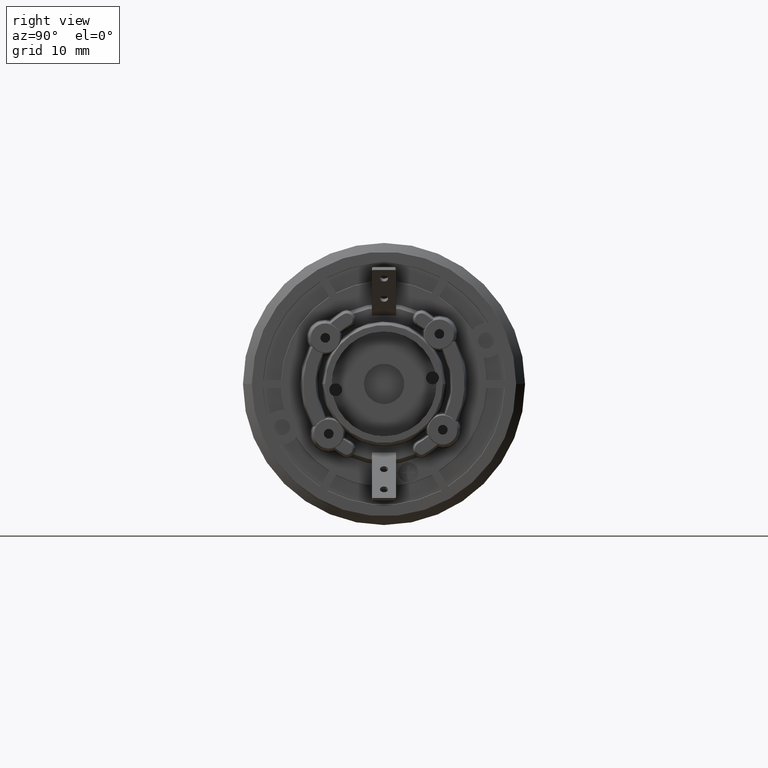
[diagram: clean part render]
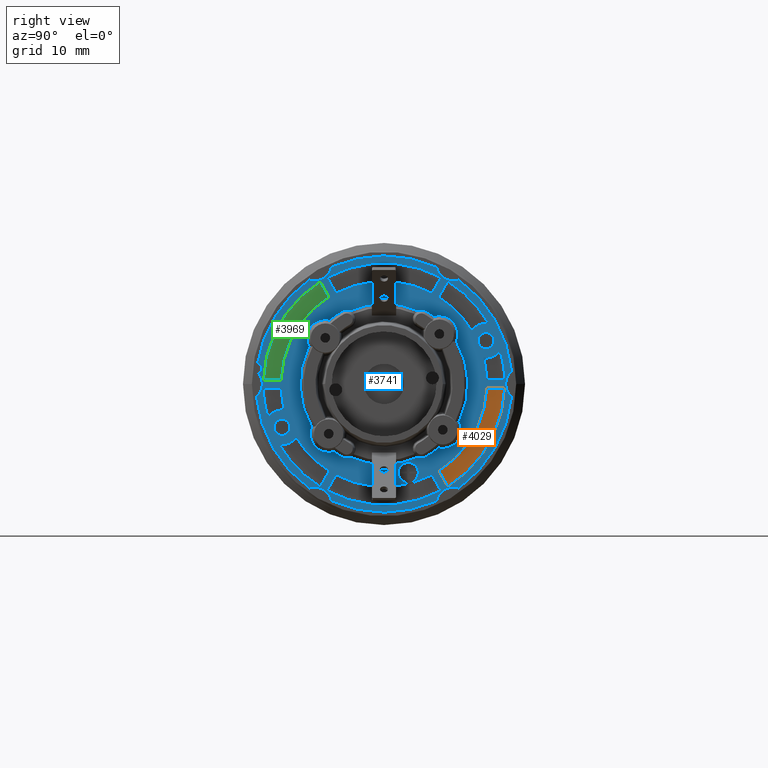
[diagram: same view with three faces highlighted in distinct colors, each labeled with its STEP entity id]
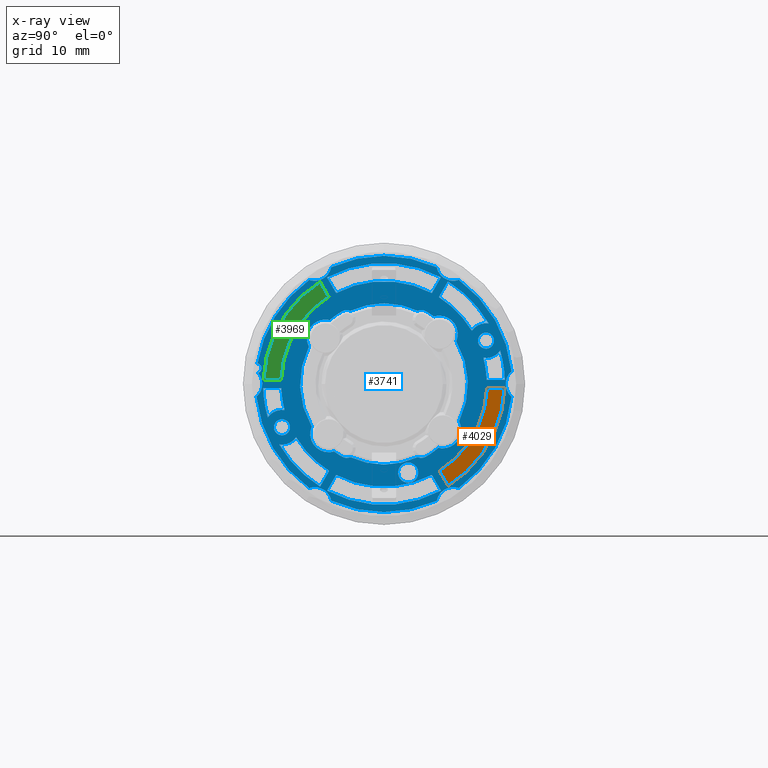
[diagram: x-ray of the same camera — body ghosted, the three highlighted faces saturated]
A machine part, right view with three faces highlighted in distinct colors.
The next image is the same camera in x-ray (body ghosted, the three faces saturated) — at least one of them is partly hidden behind the body in this view.
Their STEP definitions:

[orange] entity #4029 — the highlighted planar face has unit normal (-1, 0, 0).
#209=CARTESIAN_POINT('',(6.74E0,0.E0,0.E0));
#210=DIRECTION('',(-1.E0,0.E0,0.E0));
#211=DIRECTION('',(0.E0,9.992360224352E-1,-3.908160011910E-2));
#212=AXIS2_PLACEMENT_3D('',#209,#210,#211);
#1835=CARTESIAN_POINT('',(6.74E0,0.E0,0.E0));
#1836=DIRECTION('',(-1.E0,0.E0,0.E0));
#1837=DIRECTION('',(0.E0,9.994410336720E-1,-3.343082727998E-2));
#1838=AXIS2_PLACEMENT_3D('',#1835,#1836,#1837);
#1999=DIRECTION('',(0.E0,1.E0,0.E0));
#2000=VECTOR('',#1999,2.163925426802E0);
#2001=CARTESIAN_POINT('',(6.74E0,1.278397019812E1,-5.E-1));
#2002=LINE('',#2001,#2000);
#2003=DIRECTION('',(0.E0,-5.E-1,8.660254037844E-1));
#2004=VECTOR('',#2003,2.163925426802E0);
#2005=CARTESIAN_POINT('',(6.74E0,7.906960514355E0,-1.269525734430E1));
#2006=LINE('',#2005,#2004);
#3318=CARTESIAN_POINT('',(6.74E0,1.494789562493E1,-5.E-1));
#3319=CARTESIAN_POINT('',(6.74E0,7.906960514355E0,-1.269525734430E1));
#3320=VERTEX_POINT('',#3318);
#3321=VERTEX_POINT('',#3319);
#3350=CARTESIAN_POINT('',(6.74E0,1.278397019812E1,-5.E-1));
#3351=CARTESIAN_POINT('',(6.74E0,6.824997800954E0,-1.082124295280E1));
#3352=VERTEX_POINT('',#3350);
#3353=VERTEX_POINT('',#3351);
#4015=CARTESIAN_POINT('',(6.74E0,0.E0,0.E0));
#4016=DIRECTION('',(-1.E0,0.E0,0.E0));
#4017=DIRECTION('',(0.E0,1.E0,0.E0));
#4018=AXIS2_PLACEMENT_3D('',#4015,#4016,#4017);
#4019=PLANE('',#4018);
#4021=ORIENTED_EDGE('',*,*,#4020,.T.);
#4023=ORIENTED_EDGE('',*,*,#4022,.T.);
#4024=ORIENTED_EDGE('',*,*,#3747,.F.);
#4026=ORIENTED_EDGE('',*,*,#4025,.T.);
#4027=EDGE_LOOP('',(#4021,#4023,#4024,#4026));
#4028=FACE_OUTER_BOUND('',#4027,.F.);
#4029=ADVANCED_FACE('',(#4028),#4019,.F.);
#213=CIRCLE('',#212,1.279374433176E1);
#1839=CIRCLE('',#1838,1.495625566824E1);
#3747=EDGE_CURVE('',#3352,#3353,#213,.T.);
#4020=EDGE_CURVE('',#3320,#3321,#1839,.T.);
#4022=EDGE_CURVE('',#3321,#3353,#2006,.T.);
#4025=EDGE_CURVE('',#3352,#3320,#2002,.T.);

[blue] entity #3741 — the highlighted planar face has unit normal (-1, 0, 0).
#1=DIRECTION('',(0.E0,5.E-1,8.660254037844E-1));
#2=VECTOR('',#1,2.251472044324E0);
#3=CARTESIAN_POINT('',(7.24E0,6.803108855013E0,1.078333018630E1));
#4=LINE('',#3,#2);
#5=DIRECTION('',(0.E0,-5.E-1,-8.660254037844E-1));
#6=VECTOR('',#5,2.251472044324E0);
#7=CARTESIAN_POINT('',(7.24E0,-6.803108855013E0,-1.078333018630E1));
#8=LINE('',#7,#6);
#9=CARTESIAN_POINT('',(7.24E0,-6.87E0,-6.19E0));
#10=DIRECTION('',(-1.E0,0.E0,0.E0));
#11=DIRECTION('',(0.E0,2.981476129001E-1,-9.545197750293E-1));
#12=AXIS2_PLACEMENT_3D('',#9,#10,#11);
#14=CARTESIAN_POINT('',(7.24E0,0.E0,0.E0));
#15=DIRECTION('',(1.E0,0.E0,0.E0));
#16=DIRECTION('',(0.E0,-5.943893332211E-1,-8.041774185794E-1));
#17=AXIS2_PLACEMENT_3D('',#14,#15,#16);
#19=CARTESIAN_POINT('',(7.24E0,-4.625E0,-8.010734985006E0));
#20=DIRECTION('',(1.E0,0.E0,0.E0));
#21=DIRECTION('',(0.E0,-5.E-1,-8.660254037844E-1));
#22=AXIS2_PLACEMENT_3D('',#19,#20,#21);
#24=CARTESIAN_POINT('',(7.24E0,0.E0,0.E0));
#25=DIRECTION('',(-1.E0,0.E0,0.E0));
#26=DIRECTION('',(0.E0,4.181361271310E-1,-9.083843785468E-1));
#27=AXIS2_PLACEMENT_3D('',#24,#25,#26);
#29=CARTESIAN_POINT('',(7.24E0,4.625E0,-8.010734985006E0));
#30=DIRECTION('',(1.E0,0.E0,0.E0));
#31=DIRECTION('',(0.E0,-3.820530333871E-1,-9.241404004153E-1));
#32=AXIS2_PLACEMENT_3D('',#29,#30,#31);
#34=CARTESIAN_POINT('',(7.24E0,0.E0,0.E0));
#35=DIRECTION('',(1.E0,0.E0,0.E0));
#36=DIRECTION('',(0.E0,5.E-1,-8.660254037844E-1));
#37=AXIS2_PLACEMENT_3D('',#34,#35,#36);
#39=CARTESIAN_POINT('',(7.24E0,7.29E0,-5.7E0));
#40=DIRECTION('',(-1.E0,0.E0,0.E0));
#41=DIRECTION('',(0.E0,0.E0,-1.E0));
#42=AXIS2_PLACEMENT_3D('',#39,#40,#41);
#44=CARTESIAN_POINT('',(7.24E0,7.29E0,-5.7E0));
#45=DIRECTION('',(-1.E0,0.E0,0.E0));
#46=DIRECTION('',(0.E0,8.869767942068E-1,4.618139956070E-1));
#47=AXIS2_PLACEMENT_3D('',#44,#45,#46);
#49=CARTESIAN_POINT('',(7.24E0,0.E0,0.E0));
#50=DIRECTION('',(1.E0,0.E0,0.E0));
#51=DIRECTION('',(0.E0,8.949995648895E-1,-4.460670116111E-1));
#52=AXIS2_PLACEMENT_3D('',#49,#50,#51);
#54=CARTESIAN_POINT('',(7.24E0,6.87E0,6.19E0));
#55=DIRECTION('',(-1.E0,0.E0,0.E0));
#56=DIRECTION('',(0.E0,0.E0,1.E0));
#57=AXIS2_PLACEMENT_3D('',#54,#55,#56);
#59=CARTESIAN_POINT('',(7.24E0,6.87E0,6.19E0));
#60=DIRECTION('',(-1.E0,0.E0,0.E0));
#61=DIRECTION('',(0.E0,-2.981476129001E-1,9.545197750293E-1));
#62=AXIS2_PLACEMENT_3D('',#59,#60,#61);
#64=CARTESIAN_POINT('',(7.24E0,0.E0,0.E0));
#65=DIRECTION('',(1.E0,0.E0,0.E0));
#66=DIRECTION('',(0.E0,5.943893332211E-1,8.041774185794E-1));
#67=AXIS2_PLACEMENT_3D('',#64,#65,#66);
#69=CARTESIAN_POINT('',(7.24E0,4.625E0,8.010734985006E0));
#70=DIRECTION('',(1.E0,0.E0,0.E0));
#71=DIRECTION('',(0.E0,5.E-1,8.660254037844E-1));
#72=AXIS2_PLACEMENT_3D('',#69,#70,#71);
#74=CARTESIAN_POINT('',(7.24E0,0.E0,0.E0));
#75=DIRECTION('',(1.E0,0.E0,0.E0));
#76=DIRECTION('',(0.E0,4.181361271310E-1,9.083843785468E-1));
#77=AXIS2_PLACEMENT_3D('',#74,#75,#76);
#79=CARTESIAN_POINT('',(7.24E0,-4.625E0,8.010734985006E0));
#80=DIRECTION('',(1.E0,0.E0,0.E0));
#81=DIRECTION('',(0.E0,3.820530333871E-1,9.241404004153E-1));
#82=AXIS2_PLACEMENT_3D('',#79,#80,#81);
#84=CARTESIAN_POINT('',(7.24E0,0.E0,0.E0));
#85=DIRECTION('',(1.E0,0.E0,0.E0));
#86=DIRECTION('',(0.E0,-5.E-1,8.660254037844E-1));
#87=AXIS2_PLACEMENT_3D('',#84,#85,#86);
#89=CARTESIAN_POINT('',(7.24E0,-7.29E0,5.7E0));
#90=DIRECTION('',(-1.E0,0.E0,0.E0));
#91=DIRECTION('',(0.E0,0.E0,1.E0));
#92=AXIS2_PLACEMENT_3D('',#89,#90,#91);
#94=CARTESIAN_POINT('',(7.24E0,-7.29E0,5.7E0));
#95=DIRECTION('',(-1.E0,0.E0,0.E0));
#96=DIRECTION('',(0.E0,-8.869767942069E-1,-4.618139956070E-1));
#97=AXIS2_PLACEMENT_3D('',#94,#95,#96);
#99=CARTESIAN_POINT('',(7.24E0,0.E0,0.E0));
#100=DIRECTION('',(1.E0,0.E0,0.E0));
#101=DIRECTION('',(0.E0,-8.949995648895E-1,4.460670116111E-1));
#102=AXIS2_PLACEMENT_3D('',#99,#100,#101);
#104=CARTESIAN_POINT('',(7.24E0,-6.87E0,-6.19E0));
#105=DIRECTION('',(-1.E0,0.E0,0.E0));
#106=DIRECTION('',(0.E0,0.E0,-1.E0));
#107=AXIS2_PLACEMENT_3D('',#104,#105,#106);
#109=DIRECTION('',(0.E0,-5.E-1,8.660254037844E-1));
#110=VECTOR('',#109,2.251472044324E0);
#111=CARTESIAN_POINT('',(7.24E0,7.928844877175E0,-1.273316217260E1));
#112=LINE('',#111,#110);
#113=DIRECTION('',(0.E0,1.E0,0.E0));
#114=VECTOR('',#113,2.251472044324E0);
#115=CARTESIAN_POINT('',(7.24E0,1.274019230624E1,-5.E-1));
#116=LINE('',#115,#114);
#117=DIRECTION('',(0.E0,5.E-1,8.660254037844E-1));
#118=VECTOR('',#117,2.251472044324E0);
#119=CARTESIAN_POINT('',(7.24E0,-7.062819473390E0,-1.323316217260E1));
#120=LINE('',#119,#118);
#121=DIRECTION('',(0.E0,5.E-1,-8.660254037844E-1));
#122=VECTOR('',#121,2.251472044324E0);
#123=CARTESIAN_POINT('',(7.24E0,5.937083451228E0,-1.128333018630E1));
#124=LINE('',#123,#122);
#125=DIRECTION('',(0.E0,5.E-1,-8.660254037844E-1));
#126=VECTOR('',#125,2.251472044324E0);
#127=CARTESIAN_POINT('',(7.24E0,-7.928844877175E0,1.273316217260E1));
#128=LINE('',#127,#126);
#129=DIRECTION('',(0.E0,-1.E0,0.E0));
#130=VECTOR('',#129,2.251472044324E0);
#131=CARTESIAN_POINT('',(7.24E0,-1.274019230624E1,5.E-1));
#132=LINE('',#131,#130);
#133=DIRECTION('',(0.E0,-5.E-1,-8.660254037844E-1));
#134=VECTOR('',#133,2.251472044324E0);
#135=CARTESIAN_POINT('',(7.24E0,7.062819473390E0,1.323316217260E1));
#136=LINE('',#135,#134);
#137=DIRECTION('',(0.E0,-5.E-1,8.660254037844E-1));
#138=VECTOR('',#137,2.251472044324E0);
#139=CARTESIAN_POINT('',(7.24E0,-5.937083451228E0,1.128333018630E1));
#140=LINE('',#139,#138);
#141=DIRECTION('',(0.E0,1.E0,0.E0));
#142=VECTOR('',#141,2.251472044324E0);
#143=CARTESIAN_POINT('',(7.24E0,-1.499166435056E1,-5.E-1));
#144=LINE('',#143,#142);
#145=DIRECTION('',(0.E0,-1.E0,0.E0));
#146=VECTOR('',#145,2.251472044324E0);
#147=CARTESIAN_POINT('',(7.24E0,1.499166435056E1,5.E-1));
#148=LINE('',#147,#146);
#149=CARTESIAN_POINT('',(7.24E0,-1.265694173497E1,-5.372553016728E0));
#150=DIRECTION('',(1.E0,0.E0,0.E0));
#151=DIRECTION('',(0.E0,0.E0,-1.E0));
#152=AXIS2_PLACEMENT_3D('',#149,#150,#151);
#154=CARTESIAN_POINT('',(7.24E0,-1.265694173497E1,-5.372553016728E0));
#155=DIRECTION('',(1.E0,0.E0,0.E0));
#156=DIRECTION('',(0.E0,0.E0,1.E0));
#157=AXIS2_PLACEMENT_3D('',#154,#155,#156);
#159=CARTESIAN_POINT('',(7.24E0,1.265694173497E1,5.372553016728E0));
#160=DIRECTION('',(1.E0,0.E0,0.E0));
#161=DIRECTION('',(0.E0,0.E0,-1.E0));
#162=AXIS2_PLACEMENT_3D('',#159,#160,#161);
#164=CARTESIAN_POINT('',(7.24E0,1.265694173497E1,5.372553016728E0));
#165=DIRECTION('',(1.E0,0.E0,0.E0));
#166=DIRECTION('',(0.E0,0.E0,1.E0));
#167=AXIS2_PLACEMENT_3D('',#164,#165,#166);
#169=CARTESIAN_POINT('',(7.24E0,8.6E0,1.489563694509E1));
#170=DIRECTION('',(1.E0,0.E0,0.E0));
#171=DIRECTION('',(0.E0,-9.814647443284E-1,-1.916427813417E-1));
#172=AXIS2_PLACEMENT_3D('',#169,#170,#171);
#174=CARTESIAN_POINT('',(7.24E0,1.72E1,0.E0));
#175=DIRECTION('',(1.E0,0.E0,0.E0));
#176=DIRECTION('',(0.E0,-6.566998892580E-1,7.541520108363E-1));
#177=AXIS2_PLACEMENT_3D('',#174,#175,#176);
#179=CARTESIAN_POINT('',(7.24E0,8.6E0,-1.489563694509E1));
#180=DIRECTION('',(1.E0,0.E0,0.E0));
#181=DIRECTION('',(0.E0,3.247648550704E-1,9.457947921780E-1));
#182=AXIS2_PLACEMENT_3D('',#179,#180,#181);
#184=CARTESIAN_POINT('',(7.24E0,-8.6E0,-1.489563694509E1));
#185=DIRECTION('',(1.E0,0.E0,0.E0));
#186=DIRECTION('',(0.E0,9.814647443284E-1,1.916427813417E-1));
#187=AXIS2_PLACEMENT_3D('',#184,#185,#186);
#189=CARTESIAN_POINT('',(7.24E0,-1.72E1,0.E0));
#190=DIRECTION('',(1.E0,0.E0,0.E0));
#191=DIRECTION('',(0.E0,6.566998892580E-1,-7.541520108363E-1));
#192=AXIS2_PLACEMENT_3D('',#189,#190,#191);
#194=CARTESIAN_POINT('',(7.24E0,-8.6E0,1.489563694509E1));
#195=DIRECTION('',(1.E0,0.E0,0.E0));
#196=DIRECTION('',(0.E0,-3.247648550704E-1,-9.457947921780E-1));
#197=AXIS2_PLACEMENT_3D('',#194,#195,#196);
#199=CARTESIAN_POINT('',(7.24E0,3.E0,-1.1E1));
#200=DIRECTION('',(1.E0,0.E0,0.E0));
#201=DIRECTION('',(0.E0,0.E0,1.E0));
#202=AXIS2_PLACEMENT_3D('',#199,#200,#201);
#204=CARTESIAN_POINT('',(7.24E0,3.E0,-1.1E1));
#205=DIRECTION('',(1.E0,0.E0,0.E0));
#206=DIRECTION('',(0.E0,0.E0,-1.E0));
#207=AXIS2_PLACEMENT_3D('',#204,#205,#206);
#220=CARTESIAN_POINT('',(7.24E0,0.E0,0.E0));
#221=DIRECTION('',(1.E0,0.E0,0.E0));
#222=DIRECTION('',(0.E0,5.335771650990E-1,-8.457513871611E-1));
#223=AXIS2_PLACEMENT_3D('',#220,#221,#222);
#242=CARTESIAN_POINT('',(7.24E0,0.E0,0.E0));
#243=DIRECTION('',(1.E0,0.E0,0.E0));
#244=DIRECTION('',(0.E0,-4.656536040179E-1,-8.849670734356E-1));
#245=AXIS2_PLACEMENT_3D('',#242,#243,#244);
#264=CARTESIAN_POINT('',(7.24E0,0.E0,0.E0));
#265=DIRECTION('',(1.E0,0.E0,0.E0));
#266=DIRECTION('',(0.E0,-8.549735760760E-1,-5.186715571649E-1));
#267=AXIS2_PLACEMENT_3D('',#264,#265,#266);
#286=CARTESIAN_POINT('',(7.24E0,0.E0,0.E0));
#287=DIRECTION('',(1.E0,0.E0,0.E0));
#288=DIRECTION('',(0.E0,-9.992307691169E-1,-3.921568627451E-2));
#289=AXIS2_PLACEMENT_3D('',#286,#287,#288);
#302=CARTESIAN_POINT('',(7.24E0,0.E0,0.E0));
#303=DIRECTION('',(1.E0,0.E0,0.E0));
#304=DIRECTION('',(0.E0,-5.335771650990E-1,8.457513871611E-1));
#305=AXIS2_PLACEMENT_3D('',#302,#303,#304);
#324=CARTESIAN_POINT('',(7.24E0,0.E0,0.E0));
#325=DIRECTION('',(1.E0,0.E0,0.E0));
#326=DIRECTION('',(0.E0,4.656536040179E-1,8.849670734356E-1));
#327=AXIS2_PLACEMENT_3D('',#324,#325,#326);
#346=CARTESIAN_POINT('',(7.24E0,0.E0,0.E0));
#347=DIRECTION('',(1.E0,0.E0,0.E0));
#348=DIRECTION('',(0.E0,8.549735760760E-1,5.186715571649E-1));
#349=AXIS2_PLACEMENT_3D('',#346,#347,#348);
#368=CARTESIAN_POINT('',(7.24E0,0.E0,0.E0));
#369=DIRECTION('',(1.E0,0.E0,0.E0));
#370=DIRECTION('',(0.E0,9.992307691169E-1,3.921568627451E-2));
#371=AXIS2_PLACEMENT_3D('',#368,#369,#370);
#1846=CARTESIAN_POINT('',(7.24E0,0.E0,0.E0));
#1847=DIRECTION('',(-1.E0,0.E0,0.E0));
#1848=DIRECTION('',(0.E0,9.994442900377E-1,-3.333333333333E-2));
#1849=AXIS2_PLACEMENT_3D('',#1846,#1847,#1848);
#1868=CARTESIAN_POINT('',(7.24E0,0.E0,0.E0));
#1869=DIRECTION('',(-1.E0,0.E0,0.E0));
#1870=DIRECTION('',(0.E0,4.708546315594E-1,-8.822108115066E-1));
#1871=AXIS2_PLACEMENT_3D('',#1868,#1869,#1870);
#1890=CARTESIAN_POINT('',(7.24E0,0.E0,0.E0));
#1891=DIRECTION('',(-1.E0,0.E0,0.E0));
#1892=DIRECTION('',(0.E0,-5.285896584783E-1,-8.488774781733E-1));
#1893=AXIS2_PLACEMENT_3D('',#1890,#1891,#1892);
#1906=CARTESIAN_POINT('',(7.24E0,0.E0,0.E0));
#1907=DIRECTION('',(-1.E0,0.E0,0.E0));
#1908=DIRECTION('',(0.E0,-9.611808896919E-1,-2.759190049473E-1));
#1909=AXIS2_PLACEMENT_3D('',#1906,#1907,#1908);
#1928=CARTESIAN_POINT('',(7.24E0,0.E0,0.E0));
#1929=DIRECTION('',(-1.E0,0.E0,0.E0));
#1930=DIRECTION('',(0.E0,-9.994442900377E-1,3.333333333333E-2));
#1931=AXIS2_PLACEMENT_3D('',#1928,#1929,#1930);
#1950=CARTESIAN_POINT('',(7.24E0,0.E0,0.E0));
#1951=DIRECTION('',(-1.E0,0.E0,0.E0));
#1952=DIRECTION('',(0.E0,-4.708546315594E-1,8.822108115066E-1));
#1953=AXIS2_PLACEMENT_3D('',#1950,#1951,#1952);
#1972=CARTESIAN_POINT('',(7.24E0,0.E0,0.E0));
#1973=DIRECTION('',(-1.E0,0.E0,0.E0));
#1974=DIRECTION('',(0.E0,5.285896584783E-1,8.488774781733E-1));
#1975=AXIS2_PLACEMENT_3D('',#1972,#1973,#1974);
#1988=CARTESIAN_POINT('',(7.24E0,0.E0,0.E0));
#1989=DIRECTION('',(-1.E0,0.E0,0.E0));
#1990=DIRECTION('',(0.E0,9.611808896919E-1,2.759190049473E-1));
#1991=AXIS2_PLACEMENT_3D('',#1988,#1989,#1990);
#2030=CARTESIAN_POINT('',(7.24E0,-1.265694173497E1,-5.372553016728E0));
#2031=DIRECTION('',(1.E0,0.E0,0.E0));
#2032=DIRECTION('',(0.E0,-1.561099312563E-1,-9.877396870447E-1));
#2033=AXIS2_PLACEMENT_3D('',#2030,#2031,#2032);
#2046=CARTESIAN_POINT('',(7.24E0,-1.265694173497E1,-5.372553016728E0));
#2047=DIRECTION('',(1.E0,0.E0,0.E0));
#2048=DIRECTION('',(0.E0,1.523219789106E-1,9.883309236995E-1));
#2049=AXIS2_PLACEMENT_3D('',#2046,#2047,#2048);
#2086=CARTESIAN_POINT('',(7.24E0,1.265694173497E1,5.372553016728E0));
#2087=DIRECTION('',(1.E0,0.E0,0.E0));
#2088=DIRECTION('',(0.E0,-1.523219789106E-1,-9.883309236995E-1));
#2089=AXIS2_PLACEMENT_3D('',#2086,#2087,#2088);
#2102=CARTESIAN_POINT('',(7.24E0,1.265694173497E1,5.372553016728E0));
#2103=DIRECTION('',(1.E0,0.E0,0.E0));
#2104=DIRECTION('',(0.E0,1.561099312563E-1,9.877396870447E-1));
#2105=AXIS2_PLACEMENT_3D('',#2102,#2103,#2104);
#2474=CARTESIAN_POINT('',(7.24E0,0.E0,0.E0));
#2475=DIRECTION('',(1.E0,0.E0,0.E0));
#2476=DIRECTION('',(0.E0,-5.837739745690E-1,8.119162189634E-1));
#2477=AXIS2_PLACEMENT_3D('',#2474,#2475,#2476);
#2492=CARTESIAN_POINT('',(7.24E0,0.E0,0.E0));
#2493=DIRECTION('',(1.E0,0.E0,0.E0));
#2494=DIRECTION('',(0.E0,4.112530840824E-1,9.115212015267E-1));
#2495=AXIS2_PLACEMENT_3D('',#2492,#2493,#2494);
#2510=CARTESIAN_POINT('',(7.24E0,0.E0,0.E0));
#2511=DIRECTION('',(1.E0,0.E0,0.E0));
#2512=DIRECTION('',(0.E0,9.950270586515E-1,9.960498256329E-2));
#2513=AXIS2_PLACEMENT_3D('',#2510,#2511,#2512);
#2528=CARTESIAN_POINT('',(7.24E0,0.E0,0.E0));
#2529=DIRECTION('',(1.E0,0.E0,0.E0));
#2530=DIRECTION('',(0.E0,5.837739745690E-1,-8.119162189634E-1));
#2531=AXIS2_PLACEMENT_3D('',#2528,#2529,#2530);
#2546=CARTESIAN_POINT('',(7.24E0,0.E0,0.E0));
#2547=DIRECTION('',(1.E0,0.E0,0.E0));
#2548=DIRECTION('',(0.E0,-4.112530840824E-1,-9.115212015267E-1));
#2549=AXIS2_PLACEMENT_3D('',#2546,#2547,#2548);
#2564=CARTESIAN_POINT('',(7.24E0,0.E0,0.E0));
#2565=DIRECTION('',(1.E0,0.E0,0.E0));
#2566=DIRECTION('',(0.E0,-9.950270586515E-1,-9.960498256329E-2));
#2567=AXIS2_PLACEMENT_3D('',#2564,#2565,#2566);
#2583=CARTESIAN_POINT('',(7.24E0,-1.578148381110E1,1.937722560142E0));
#2584=DIRECTION('',(-1.E0,0.E0,0.E0));
#2585=DIRECTION('',(0.E0,1.405749346978E-1,9.900700418327E-1));
#2586=AXIS2_PLACEMENT_3D('',#2583,#2584,#2585);
#2839=CARTESIAN_POINT('',(7.24E0,-5.205598359286E0,-9.016360842080E0));
#2840=CARTESIAN_POINT('',(7.24E0,-4.181361271310E0,-9.083843785468E0));
#2841=VERTEX_POINT('',#2839);
#2842=VERTEX_POINT('',#2840);
#2844=CARTESIAN_POINT('',(7.24E0,-5.205598359286E0,9.016360842080E0));
#2846=VERTEX_POINT('',#2844);
#2857=CARTESIAN_POINT('',(7.24E0,5.205598359286E0,9.016360842080E0));
#2858=CARTESIAN_POINT('',(7.24E0,4.181361271310E0,9.083843785468E0));
#2859=VERTEX_POINT('',#2857);
#2860=VERTEX_POINT('',#2858);
#2862=CARTESIAN_POINT('',(7.24E0,5.205598359286E0,-9.016360842080E0));
#2864=VERTEX_POINT('',#2862);
#2883=CARTESIAN_POINT('',(7.24E0,4.181361271310E0,-9.083843785468E0));
#2884=VERTEX_POINT('',#2883);
#2885=CARTESIAN_POINT('',(7.24E0,-4.181361271310E0,9.083843785468E0));
#2886=VERTEX_POINT('',#2885);
#2891=CARTESIAN_POINT('',(7.24E0,-6.188304275585E0,-8.372449301463E0));
#2892=VERTEX_POINT('',#2891);
#2897=CARTESIAN_POINT('',(7.24E0,-6.87E0,-8.476436969204E0));
#2898=CARTESIAN_POINT('',(7.24E0,-8.969851708742E0,-5.285336075973E0));
#2899=VERTEX_POINT('',#2897);
#2900=VERTEX_POINT('',#2898);
#2916=CARTESIAN_POINT('',(7.24E0,6.754401643644E0,-7.922819924063E0));
#2917=VERTEX_POINT('',#2916);
#2926=CARTESIAN_POINT('',(7.24E0,6.188304275585E0,8.372449301463E0));
#2927=VERTEX_POINT('',#2926);
#2934=CARTESIAN_POINT('',(7.24E0,9.318016533101E0,-4.644091407548E0));
#2935=CARTESIAN_POINT('',(7.24E0,8.969851708742E0,5.285336075973E0));
#2936=VERTEX_POINT('',#2934);
#2937=VERTEX_POINT('',#2935);
#2954=CARTESIAN_POINT('',(7.24E0,-6.754401643644E0,7.922819924063E0));
#2955=VERTEX_POINT('',#2954);
#2966=CARTESIAN_POINT('',(7.24E0,-9.318016533101E0,4.644091407548E0));
#2967=VERTEX_POINT('',#2966);
#2972=CARTESIAN_POINT('',(7.24E0,-7.29E0,7.986436969204E0));
#2973=VERTEX_POINT('',#2972);
#2974=CARTESIAN_POINT('',(7.24E0,6.87E0,8.476436969204E0));
#2975=VERTEX_POINT('',#2974);
#2978=CARTESIAN_POINT('',(7.24E0,7.29E0,-7.986436969204E0));
#2979=VERTEX_POINT('',#2978);
#3028=CARTESIAN_POINT('',(7.24E0,1.499166435056E1,5.E-1));
#3029=CARTESIAN_POINT('',(7.24E0,1.274019230624E1,5.E-1));
#3030=VERTEX_POINT('',#3028);
#3031=VERTEX_POINT('',#3029);
#3032=CARTESIAN_POINT('',(7.24E0,1.274019230624E1,-5.E-1));
#3033=CARTESIAN_POINT('',(7.24E0,1.499166435056E1,-5.E-1));
#3034=VERTEX_POINT('',#3032);
#3035=VERTEX_POINT('',#3033);
#3036=CARTESIAN_POINT('',(7.24E0,7.928844877175E0,-1.273316217260E1));
#3037=VERTEX_POINT('',#3036);
#3038=CARTESIAN_POINT('',(7.24E0,6.803108855013E0,-1.078333018630E1));
#3039=VERTEX_POINT('',#3038);
#3040=CARTESIAN_POINT('',(7.24E0,5.937083451228E0,-1.128333018630E1));
#3041=CARTESIAN_POINT('',(7.24E0,7.062819473390E0,-1.323316217260E1));
#3042=VERTEX_POINT('',#3040);
#3043=VERTEX_POINT('',#3041);
#3044=CARTESIAN_POINT('',(7.24E0,-7.062819473390E0,-1.323316217260E1));
#3045=VERTEX_POINT('',#3044);
#3046=CARTESIAN_POINT('',(7.24E0,-5.937083451228E0,-1.128333018630E1));
#3047=VERTEX_POINT('',#3046);
#3048=CARTESIAN_POINT('',(7.24E0,-6.803108855013E0,-1.078333018630E1));
#3049=CARTESIAN_POINT('',(7.24E0,-7.928844877175E0,-1.273316217260E1));
#3050=VERTEX_POINT('',#3048);
#3051=VERTEX_POINT('',#3049);
#3052=CARTESIAN_POINT('',(7.24E0,-1.499166435056E1,-5.E-1));
#3053=CARTESIAN_POINT('',(7.24E0,-1.274019230624E1,-5.E-1));
#3054=VERTEX_POINT('',#3052);
#3055=VERTEX_POINT('',#3053);
#3056=CARTESIAN_POINT('',(7.24E0,-1.274019230624E1,5.E-1));
#3057=CARTESIAN_POINT('',(7.24E0,-1.499166435056E1,5.E-1));
#3058=VERTEX_POINT('',#3056);
#3059=VERTEX_POINT('',#3057);
#3060=CARTESIAN_POINT('',(7.24E0,-7.928844877175E0,1.273316217260E1));
#3061=VERTEX_POINT('',#3060);
#3062=CARTESIAN_POINT('',(7.24E0,-6.803108855013E0,1.078333018630E1));
#3063=VERTEX_POINT('',#3062);
#3064=CARTESIAN_POINT('',(7.24E0,-5.937083451228E0,1.128333018630E1));
#3065=CARTESIAN_POINT('',(7.24E0,-7.062819473390E0,1.323316217260E1));
#3066=VERTEX_POINT('',#3064);
#3067=VERTEX_POINT('',#3065);
#3068=CARTESIAN_POINT('',(7.24E0,7.062819473390E0,1.323316217260E1));
#3069=VERTEX_POINT('',#3068);
#3070=CARTESIAN_POINT('',(7.24E0,5.937083451228E0,1.128333018630E1));
#3071=VERTEX_POINT('',#3070);
#3072=CARTESIAN_POINT('',(7.24E0,6.803108855013E0,1.078333018630E1));
#3073=CARTESIAN_POINT('',(7.24E0,7.928844877175E0,1.273316217260E1));
#3074=VERTEX_POINT('',#3072);
#3075=VERTEX_POINT('',#3073);
#3076=CARTESIAN_POINT('',(7.24E0,-1.299257808717E1,-7.496193343874E0));
#3077=VERTEX_POINT('',#3076);
#3078=CARTESIAN_POINT('',(7.24E0,-1.441771334538E1,-4.138785074210E0));
#3079=VERTEX_POINT('',#3078);
#3080=CARTESIAN_POINT('',(7.24E0,-1.232944948031E1,-3.247641530774E0));
#3081=VERTEX_POINT('',#3080);
#3082=CARTESIAN_POINT('',(7.24E0,-1.090091309497E1,-6.613062353852E0));
#3083=VERTEX_POINT('',#3082);
#3084=CARTESIAN_POINT('',(7.24E0,1.299257808717E1,7.496193343874E0));
#3085=VERTEX_POINT('',#3084);
#3086=CARTESIAN_POINT('',(7.24E0,1.441771334538E1,4.138785074210E0));
#3087=VERTEX_POINT('',#3086);
#3088=CARTESIAN_POINT('',(7.24E0,1.232944948031E1,3.247641530774E0));
#3089=VERTEX_POINT('',#3088);
#3090=CARTESIAN_POINT('',(7.24E0,1.090091309497E1,6.613062353852E0));
#3091=VERTEX_POINT('',#3090);
#3092=CARTESIAN_POINT('',(7.24E0,-1.265694173497E1,-6.372553016728E0));
#3093=CARTESIAN_POINT('',(7.24E0,-1.265694173497E1,-4.372553016728E0));
#3094=VERTEX_POINT('',#3092);
#3095=VERTEX_POINT('',#3093);
#3096=CARTESIAN_POINT('',(7.24E0,1.265694173497E1,4.372553016728E0));
#3097=CARTESIAN_POINT('',(7.24E0,1.265694173497E1,6.372553016728E0));
#3098=VERTEX_POINT('',#3096);
#3099=VERTEX_POINT('',#3097);
#3156=CARTESIAN_POINT('',(7.24E0,1.582093023256E1,1.583719222756E0));
#3157=CARTESIAN_POINT('',(7.24E0,1.582093023256E1,-1.583719222756E0));
#3158=VERTEX_POINT('',#3156);
#3159=VERTEX_POINT('',#3157);
#3160=CARTESIAN_POINT('',(7.24E0,9.282006195648E0,-1.290946788152E1));
#3161=CARTESIAN_POINT('',(7.24E0,6.538924036910E0,-1.449318710427E1));
#3162=VERTEX_POINT('',#3160);
#3163=VERTEX_POINT('',#3161);
#3164=CARTESIAN_POINT('',(7.24E0,-6.538924036910E0,-1.449318710427E1));
#3165=CARTESIAN_POINT('',(7.24E0,-9.282006195648E0,-1.290946788152E1));
#3166=VERTEX_POINT('',#3164);
#3167=VERTEX_POINT('',#3165);
#3168=CARTESIAN_POINT('',(7.24E0,-1.582093023256E1,-1.583719222756E0));
#3169=CARTESIAN_POINT('',(7.24E0,-1.560382110634E1,1.364629231495E0));
#3170=VERTEX_POINT('',#3168);
#3171=VERTEX_POINT('',#3169);
#3172=CARTESIAN_POINT('',(7.24E0,-1.569713885028E1,2.531764585242E0));
#3173=VERTEX_POINT('',#3172);
#3174=CARTESIAN_POINT('',(7.24E0,-9.282006195648E0,1.290946788152E1));
#3175=CARTESIAN_POINT('',(7.24E0,-6.538924036910E0,1.449318710427E1));
#3176=VERTEX_POINT('',#3174);
#3177=VERTEX_POINT('',#3175);
#3178=CARTESIAN_POINT('',(7.24E0,6.538924036910E0,1.449318710427E1));
#3179=CARTESIAN_POINT('',(7.24E0,9.282006195648E0,1.290946788152E1));
#3180=VERTEX_POINT('',#3178);
#3181=VERTEX_POINT('',#3179);
#3182=CARTESIAN_POINT('',(7.24E0,3.E0,-9.75E0));
#3183=CARTESIAN_POINT('',(7.24E0,3.E0,-1.225E1));
#3184=VERTEX_POINT('',#3182);
#3185=VERTEX_POINT('',#3183);
#3568=CARTESIAN_POINT('',(7.24E0,0.E0,0.E0));
#3569=DIRECTION('',(-1.E0,0.E0,0.E0));
#3570=DIRECTION('',(0.E0,1.E0,0.E0));
#3571=AXIS2_PLACEMENT_3D('',#3568,#3569,#3570);
#3572=PLANE('',#3571);
#3574=ORIENTED_EDGE('',*,*,#3573,.T.);
#3576=ORIENTED_EDGE('',*,*,#3575,.F.);
#3578=ORIENTED_EDGE('',*,*,#3577,.T.);
#3580=ORIENTED_EDGE('',*,*,#3579,.F.);
#3582=ORIENTED_EDGE('',*,*,#3581,.T.);
#3584=ORIENTED_EDGE('',*,*,#3583,.F.);
#3586=ORIENTED_EDGE('',*,*,#3585,.T.);
#3588=ORIENTED_EDGE('',*,*,#3587,.F.);
#3590=ORIENTED_EDGE('',*,*,#3589,.T.);
#3592=ORIENTED_EDGE('',*,*,#3591,.F.);
#3594=ORIENTED_EDGE('',*,*,#3593,.F.);
#3596=ORIENTED_EDGE('',*,*,#3595,.T.);
#3598=ORIENTED_EDGE('',*,*,#3597,.F.);
#3599=EDGE_LOOP('',(#3574,#3576,#3578,#3580,#3582,#3584,#3586,#3588,#3590,#3592,
#3594,#3596,#3598));
#3600=FACE_OUTER_BOUND('',#3599,.F.);
#3602=ORIENTED_EDGE('',*,*,#3601,.F.);
#3604=ORIENTED_EDGE('',*,*,#3603,.F.);
#3606=ORIENTED_EDGE('',*,*,#3605,.F.);
#3608=ORIENTED_EDGE('',*,*,#3607,.F.);
#3609=EDGE_LOOP('',(#3602,#3604,#3606,#3608));
#3610=FACE_BOUND('',#3609,.F.);
#3612=ORIENTED_EDGE('',*,*,#3611,.F.);
#3614=ORIENTED_EDGE('',*,*,#3613,.T.);
#3616=ORIENTED_EDGE('',*,*,#3615,.T.);
#3618=ORIENTED_EDGE('',*,*,#3617,.F.);
#3620=ORIENTED_EDGE('',*,*,#3619,.T.);
#3622=ORIENTED_EDGE('',*,*,#3621,.T.);
#3624=ORIENTED_EDGE('',*,*,#3623,.F.);
#3626=ORIENTED_EDGE('',*,*,#3625,.F.);
#3628=ORIENTED_EDGE('',*,*,#3627,.T.);
#3630=ORIENTED_EDGE('',*,*,#3629,.F.);
#3632=ORIENTED_EDGE('',*,*,#3631,.F.);
#3634=ORIENTED_EDGE('',*,*,#3633,.T.);
#3636=ORIENTED_EDGE('',*,*,#3635,.T.);
#3638=ORIENTED_EDGE('',*,*,#3637,.T.);
#3640=ORIENTED_EDGE('',*,*,#3639,.T.);
#3642=ORIENTED_EDGE('',*,*,#3641,.T.);
#3644=ORIENTED_EDGE('',*,*,#3643,.F.);
#3646=ORIENTED_EDGE('',*,*,#3645,.F.);
#3648=ORIENTED_EDGE('',*,*,#3647,.T.);
#3650=ORIENTED_EDGE('',*,*,#3649,.F.);
#3651=EDGE_LOOP('',(#3612,#3614,#3616,#3618,#3620,#3622,#3624,#3626,#3628,#3630,
#3632,#3634,#3636,#3638,#3640,#3642,#3644,#3646,#3648,#3650));
#3652=FACE_BOUND('',#3651,.F.);
#3654=ORIENTED_EDGE('',*,*,#3653,.F.);
#3656=ORIENTED_EDGE('',*,*,#3655,.F.);
#3658=ORIENTED_EDGE('',*,*,#3657,.F.);
#3660=ORIENTED_EDGE('',*,*,#3659,.F.);
#3661=EDGE_LOOP('',(#3654,#3656,#3658,#3660));
#3662=FACE_BOUND('',#3661,.F.);
#3664=ORIENTED_EDGE('',*,*,#3663,.F.);
#3666=ORIENTED_EDGE('',*,*,#3665,.F.);
#3668=ORIENTED_EDGE('',*,*,#3667,.F.);
#3670=ORIENTED_EDGE('',*,*,#3669,.F.);
#3671=EDGE_LOOP('',(#3664,#3666,#3668,#3670));
#3672=FACE_BOUND('',#3671,.F.);
#3674=ORIENTED_EDGE('',*,*,#3673,.F.);
#3676=ORIENTED_EDGE('',*,*,#3675,.F.);
#3678=ORIENTED_EDGE('',*,*,#3677,.F.);
#3680=ORIENTED_EDGE('',*,*,#3679,.F.);
#3681=EDGE_LOOP('',(#3674,#3676,#3678,#3680));
#3682=FACE_BOUND('',#3681,.F.);
#3684=ORIENTED_EDGE('',*,*,#3683,.F.);
#3686=ORIENTED_EDGE('',*,*,#3685,.F.);
#3688=ORIENTED_EDGE('',*,*,#3687,.F.);
#3690=ORIENTED_EDGE('',*,*,#3689,.F.);
#3691=EDGE_LOOP('',(#3684,#3686,#3688,#3690));
#3692=FACE_BOUND('',#3691,.F.);
#3694=ORIENTED_EDGE('',*,*,#3693,.F.);
#3696=ORIENTED_EDGE('',*,*,#3695,.F.);
#3698=ORIENTED_EDGE('',*,*,#3697,.F.);
#3700=ORIENTED_EDGE('',*,*,#3699,.F.);
#3701=EDGE_LOOP('',(#3694,#3696,#3698,#3700));
#3702=FACE_BOUND('',#3701,.F.);
#3704=ORIENTED_EDGE('',*,*,#3703,.F.);
#3706=ORIENTED_EDGE('',*,*,#3705,.F.);
#3708=ORIENTED_EDGE('',*,*,#3707,.F.);
#3710=ORIENTED_EDGE('',*,*,#3709,.F.);
#3711=EDGE_LOOP('',(#3704,#3706,#3708,#3710));
#3712=FACE_BOUND('',#3711,.F.);
#3714=ORIENTED_EDGE('',*,*,#3713,.T.);
#3716=ORIENTED_EDGE('',*,*,#3715,.T.);
#3717=EDGE_LOOP('',(#3714,#3716));
#3718=FACE_BOUND('',#3717,.F.);
#3720=ORIENTED_EDGE('',*,*,#3719,.T.);
#3722=ORIENTED_EDGE('',*,*,#3721,.T.);
#3723=EDGE_LOOP('',(#3720,#3722));
#3724=FACE_BOUND('',#3723,.F.);
#3726=ORIENTED_EDGE('',*,*,#3725,.F.);
#3728=ORIENTED_EDGE('',*,*,#3727,.F.);
#3730=ORIENTED_EDGE('',*,*,#3729,.F.);
#3732=ORIENTED_EDGE('',*,*,#3731,.F.);
#3733=EDGE_LOOP('',(#3726,#3728,#3730,#3732));
#3734=FACE_BOUND('',#3733,.F.);
#3736=ORIENTED_EDGE('',*,*,#3735,.T.);
#3738=ORIENTED_EDGE('',*,*,#3737,.T.);
#3739=EDGE_LOOP('',(#3736,#3738));
#3740=FACE_BOUND('',#3739,.F.);
#3741=ADVANCED_FACE('',(#3600,#3610,#3652,#3662,#3672,#3682,#3692,#3702,#3712,
#3718,#3724,#3734,#3740),#3572,.F.);
#13=CIRCLE('',#12,2.286436969204E0);
#18=CIRCLE('',#17,1.041119671857E1);
#23=CIRCLE('',#22,1.161196718572E0);
#28=CIRCLE('',#27,1.E1);
#33=CIRCLE('',#32,1.161196718572E0);
#38=CIRCLE('',#37,1.041119671857E1);
#43=CIRCLE('',#42,2.286436969204E0);
#48=CIRCLE('',#47,2.286436969204E0);
#53=CIRCLE('',#52,1.041119671857E1);
#58=CIRCLE('',#57,2.286436969204E0);
#63=CIRCLE('',#62,2.286436969204E0);
#68=CIRCLE('',#67,1.041119671857E1);
#73=CIRCLE('',#72,1.161196718572E0);
#78=CIRCLE('',#77,1.E1);
#83=CIRCLE('',#82,1.161196718572E0);
#88=CIRCLE('',#87,1.041119671857E1);
#93=CIRCLE('',#92,2.286436969204E0);
#98=CIRCLE('',#97,2.286436969204E0);
#103=CIRCLE('',#102,1.041119671857E1);
#108=CIRCLE('',#107,2.286436969204E0);
#153=CIRCLE('',#152,1.E0);
#158=CIRCLE('',#157,1.E0);
#163=CIRCLE('',#162,1.E0);
#168=CIRCLE('',#167,1.E0);
#173=CIRCLE('',#172,2.1E0);
#178=CIRCLE('',#177,2.1E0);
#183=CIRCLE('',#182,2.1E0);
#188=CIRCLE('',#187,2.1E0);
#193=CIRCLE('',#192,2.1E0);
#198=CIRCLE('',#197,2.1E0);
#203=CIRCLE('',#202,1.25E0);
#208=CIRCLE('',#207,1.25E0);
#224=CIRCLE('',#223,1.275E1);
#246=CIRCLE('',#245,1.275E1);
#268=CIRCLE('',#267,1.275E1);
#290=CIRCLE('',#289,1.275E1);
#306=CIRCLE('',#305,1.275E1);
#328=CIRCLE('',#327,1.275E1);
#350=CIRCLE('',#349,1.275E1);
#372=CIRCLE('',#371,1.275E1);
#1850=CIRCLE('',#1849,1.5E1);
#1872=CIRCLE('',#1871,1.5E1);
#1894=CIRCLE('',#1893,1.5E1);
#1910=CIRCLE('',#1909,1.5E1);
#1932=CIRCLE('',#1931,1.5E1);
#1954=CIRCLE('',#1953,1.5E1);
#1976=CIRCLE('',#1975,1.5E1);
#1992=CIRCLE('',#1991,1.5E1);
#2034=CIRCLE('',#2033,2.15E0);
#2050=CIRCLE('',#2049,2.15E0);
#2090=CIRCLE('',#2089,2.15E0);
#2106=CIRCLE('',#2105,2.15E0);
#2478=CIRCLE('',#2477,1.59E1);
#2496=CIRCLE('',#2495,1.59E1);
#2514=CIRCLE('',#2513,1.59E1);
#2532=CIRCLE('',#2531,1.59E1);
#2550=CIRCLE('',#2549,1.59E1);
#2568=CIRCLE('',#2567,1.59E1);
#2587=CIRCLE('',#2586,6.E-1);
#3573=EDGE_CURVE('',#3180,#3181,#173,.T.);
#3575=EDGE_CURVE('',#3158,#3181,#2514,.T.);
#3577=EDGE_CURVE('',#3158,#3159,#178,.T.);
#3579=EDGE_CURVE('',#3162,#3159,#2532,.T.);
#3581=EDGE_CURVE('',#3162,#3163,#183,.T.);
#3583=EDGE_CURVE('',#3166,#3163,#2550,.T.);
#3585=EDGE_CURVE('',#3166,#3167,#188,.T.);
#3587=EDGE_CURVE('',#3170,#3167,#2568,.T.);
#3589=EDGE_CURVE('',#3170,#3171,#193,.T.);
#3591=EDGE_CURVE('',#3173,#3171,#2587,.T.);
#3593=EDGE_CURVE('',#3176,#3173,#2478,.T.);
#3595=EDGE_CURVE('',#3176,#3177,#198,.T.);
#3597=EDGE_CURVE('',#3180,#3177,#2496,.T.);
#3601=EDGE_CURVE('',#3083,#3050,#268,.T.);
#3603=EDGE_CURVE('',#3077,#3083,#2034,.T.);
#3605=EDGE_CURVE('',#3051,#3077,#1894,.T.);
#3607=EDGE_CURVE('',#3050,#3051,#8,.T.);
#3611=EDGE_CURVE('',#2892,#2899,#13,.T.);
#3613=EDGE_CURVE('',#2892,#2841,#18,.T.);
#3615=EDGE_CURVE('',#2841,#2842,#23,.T.);
#3617=EDGE_CURVE('',#2884,#2842,#28,.T.);
#3619=EDGE_CURVE('',#2884,#2864,#33,.T.);
#3621=EDGE_CURVE('',#2864,#2917,#38,.T.);
#3623=EDGE_CURVE('',#2979,#2917,#43,.T.);
#3625=EDGE_CURVE('',#2936,#2979,#48,.T.);
#3627=EDGE_CURVE('',#2936,#2937,#53,.T.);
#3629=EDGE_CURVE('',#2975,#2937,#58,.T.);
#3631=EDGE_CURVE('',#2927,#2975,#63,.T.);
#3633=EDGE_CURVE('',#2927,#2859,#68,.T.);
#3635=EDGE_CURVE('',#2859,#2860,#73,.T.);
#3637=EDGE_CURVE('',#2860,#2886,#78,.T.);
#3639=EDGE_CURVE('',#2886,#2846,#83,.T.);
#3641=EDGE_CURVE('',#2846,#2955,#88,.T.);
#3643=EDGE_CURVE('',#2973,#2955,#93,.T.);
#3645=EDGE_CURVE('',#2967,#2973,#98,.T.);
#3647=EDGE_CURVE('',#2967,#2900,#103,.T.);
#3649=EDGE_CURVE('',#2899,#2900,#108,.T.);
#3653=EDGE_CURVE('',#3039,#3034,#224,.T.);
#3655=EDGE_CURVE('',#3037,#3039,#112,.T.);
#3657=EDGE_CURVE('',#3035,#3037,#1850,.T.);
#3659=EDGE_CURVE('',#3034,#3035,#116,.T.);
#3663=EDGE_CURVE('',#3047,#3042,#246,.T.);
#3665=EDGE_CURVE('',#3045,#3047,#120,.T.);
#3667=EDGE_CURVE('',#3043,#3045,#1872,.T.);
#3669=EDGE_CURVE('',#3042,#3043,#124,.T.);
#3673=EDGE_CURVE('',#3063,#3058,#306,.T.);
#3675=EDGE_CURVE('',#3061,#3063,#128,.T.);
#3677=EDGE_CURVE('',#3059,#3061,#1932,.T.);
#3679=EDGE_CURVE('',#3058,#3059,#132,.T.);
#3683=EDGE_CURVE('',#3071,#3066,#328,.T.);
#3685=EDGE_CURVE('',#3069,#3071,#136,.T.);
#3687=EDGE_CURVE('',#3067,#3069,#1954,.T.);
#3689=EDGE_CURVE('',#3066,#3067,#140,.T.);
#3693=EDGE_CURVE('',#3079,#3054,#1910,.T.);
#3695=EDGE_CURVE('',#3081,#3079,#2050,.T.);
#3697=EDGE_CURVE('',#3055,#3081,#290,.T.);
#3699=EDGE_CURVE('',#3054,#3055,#144,.T.);
#3703=EDGE_CURVE('',#3087,#3030,#1992,.T.);
#3705=EDGE_CURVE('',#3089,#3087,#2090,.T.);
#3707=EDGE_CURVE('',#3031,#3089,#372,.T.);
#3709=EDGE_CURVE('',#3030,#3031,#148,.T.);
#3713=EDGE_CURVE('',#3094,#3095,#153,.T.);
#3715=EDGE_CURVE('',#3095,#3094,#158,.T.);
#3719=EDGE_CURVE('',#3098,#3099,#163,.T.);
#3721=EDGE_CURVE('',#3099,#3098,#168,.T.);
#3725=EDGE_CURVE('',#3091,#3074,#350,.T.);
#3727=EDGE_CURVE('',#3085,#3091,#2106,.T.);
#3729=EDGE_CURVE('',#3075,#3085,#1976,.T.);
#3731=EDGE_CURVE('',#3074,#3075,#4,.T.);
#3735=EDGE_CURVE('',#3184,#3185,#203,.T.);
#3737=EDGE_CURVE('',#3185,#3184,#208,.T.);

[green] entity #3969 — the highlighted planar face has unit normal (-1, 0, 0).
#291=CARTESIAN_POINT('',(6.74E0,0.E0,0.E0));
#292=DIRECTION('',(-1.E0,0.E0,0.E0));
#293=DIRECTION('',(0.E0,-9.992360224352E-1,3.908160011910E-2));
#294=AXIS2_PLACEMENT_3D('',#291,#292,#293);
#1917=CARTESIAN_POINT('',(6.74E0,0.E0,0.E0));
#1918=DIRECTION('',(-1.E0,0.E0,0.E0));
#1919=DIRECTION('',(0.E0,-9.994410336720E-1,3.343082727998E-2));
#1920=AXIS2_PLACEMENT_3D('',#1917,#1918,#1919);
#2055=DIRECTION('',(0.E0,-1.E0,0.E0));
#2056=VECTOR('',#2055,2.163925426802E0);
#2057=CARTESIAN_POINT('',(6.74E0,-1.278397019812E1,5.E-1));
#2058=LINE('',#2057,#2056);
#2059=DIRECTION('',(0.E0,5.E-1,-8.660254037844E-1));
#2060=VECTOR('',#2059,2.163925426802E0);
#2061=CARTESIAN_POINT('',(6.74E0,-7.906960514355E0,1.269525734430E1));
#2062=LINE('',#2061,#2060);
#3334=CARTESIAN_POINT('',(6.74E0,-1.494789562493E1,5.E-1));
#3335=CARTESIAN_POINT('',(6.74E0,-7.906960514355E0,1.269525734430E1));
#3336=VERTEX_POINT('',#3334);
#3337=VERTEX_POINT('',#3335);
#3366=CARTESIAN_POINT('',(6.74E0,-1.278397019812E1,5.E-1));
#3367=CARTESIAN_POINT('',(6.74E0,-6.824997800954E0,1.082124295280E1));
#3368=VERTEX_POINT('',#3366);
#3369=VERTEX_POINT('',#3367);
#3955=CARTESIAN_POINT('',(6.74E0,0.E0,0.E0));
#3956=DIRECTION('',(-1.E0,0.E0,0.E0));
#3957=DIRECTION('',(0.E0,1.E0,0.E0));
#3958=AXIS2_PLACEMENT_3D('',#3955,#3956,#3957);
#3959=PLANE('',#3958);
#3961=ORIENTED_EDGE('',*,*,#3960,.T.);
#3963=ORIENTED_EDGE('',*,*,#3962,.T.);
#3964=ORIENTED_EDGE('',*,*,#3807,.F.);
#3966=ORIENTED_EDGE('',*,*,#3965,.T.);
#3967=EDGE_LOOP('',(#3961,#3963,#3964,#3966));
#3968=FACE_OUTER_BOUND('',#3967,.F.);
#3969=ADVANCED_FACE('',(#3968),#3959,.F.);
#295=CIRCLE('',#294,1.279374433176E1);
#1921=CIRCLE('',#1920,1.495625566824E1);
#3807=EDGE_CURVE('',#3368,#3369,#295,.T.);
#3960=EDGE_CURVE('',#3336,#3337,#1921,.T.);
#3962=EDGE_CURVE('',#3337,#3369,#2062,.T.);
#3965=EDGE_CURVE('',#3368,#3336,#2058,.T.);